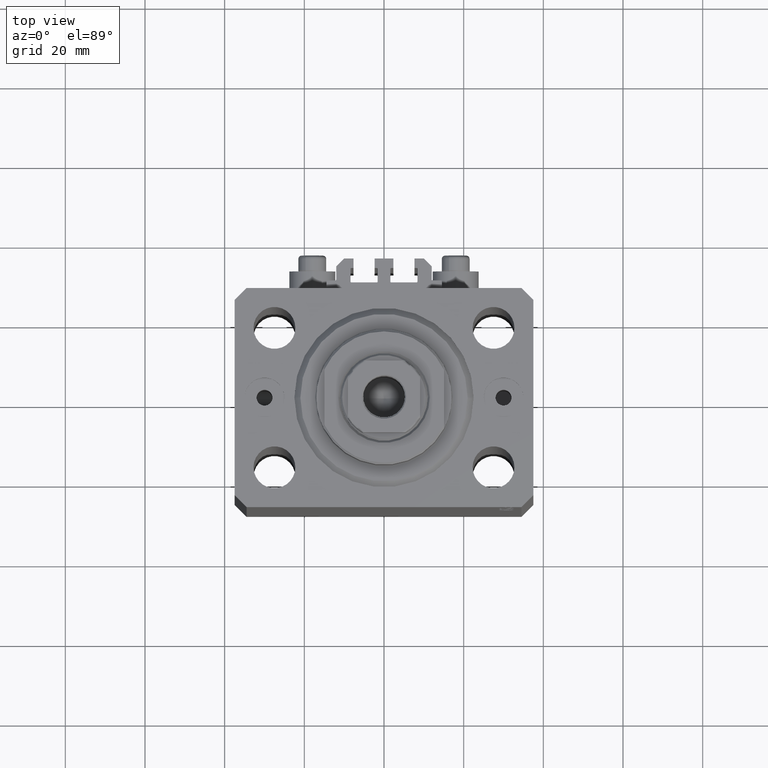
[diagram: clean part render]
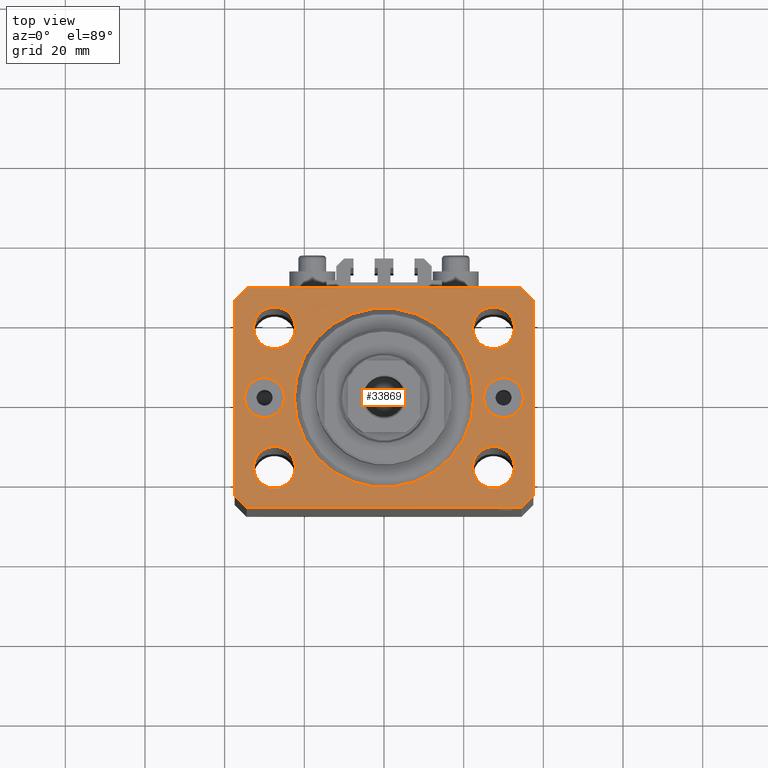
[diagram: same view with one face highlighted and labeled with its STEP entity id]
A machine part, top view. The second image highlights one B-rep face of the part: STEP entity #33869.
In plain terms, the highlighted planar face has unit normal (0, 0, 1).
Its self-contained STEP definition (entity closure, byte-faithful):
#52 = CIRCLE ( 'NONE', #45049, 4.999999999999997335 ) ;
#218 = CARTESIAN_POINT ( 'NONE',  ( -30.00000000000000000, 0.000000000000000000, 0.000000000000000000 ) ) ;
#371 = AXIS2_PLACEMENT_3D ( 'NONE', #46520, #13776, #32654 ) ;
#556 = ORIENTED_EDGE ( 'NONE', *, *, #935, .F. ) ;
#572 = AXIS2_PLACEMENT_3D ( 'NONE', #32322, #35432, #17275 ) ;
#717 = CARTESIAN_POINT ( 'NONE',  ( 32.74999999999999289, -17.50000000000000000, 0.000000000000000000 ) ) ;
#935 = EDGE_CURVE ( 'NONE', #5973, #20822, #38444, .T. ) ;
#1090 = CARTESIAN_POINT ( 'NONE',  ( -34.99999999999999289, 6.123233995736768255E-16, 0.000000000000000000 ) ) ;
#1126 = AXIS2_PLACEMENT_3D ( 'NONE', #42158, #17057, #2515 ) ;
#1346 = CARTESIAN_POINT ( 'NONE',  ( 34.50000000000056843, 27.50000000000000000, 0.000000000000000000 ) ) ;
#1486 = EDGE_CURVE ( 'NONE', #6903, #40974, #29649, .T. ) ;
#2423 = VECTOR ( 'NONE', #42468, 1000.000000000000000 ) ;
#2515 = DIRECTION ( 'NONE',  ( 1.000000000000000000, 0.000000000000000000, 0.000000000000000000 ) ) ;
#2725 = CARTESIAN_POINT ( 'NONE',  ( 37.50000000000051870, 24.49999999999995381, 0.000000000000000000 ) ) ;
#2911 = CARTESIAN_POINT ( 'NONE',  ( 34.50000000000056843, 27.50000000000000000, 0.000000000000000000 ) ) ;
#3159 = EDGE_LOOP ( 'NONE', ( #12148, #556 ) ) ;
#3284 = FACE_OUTER_BOUND ( 'NONE', #18243, .T. ) ;
#3455 = VERTEX_POINT ( 'NONE', #2725 ) ;
#3572 = AXIS2_PLACEMENT_3D ( 'NONE', #5764, #20320, #35373 ) ;
#3803 = VECTOR ( 'NONE', #15756, 1000.000000000000000 ) ;
#4118 = EDGE_CURVE ( 'NONE', #7936, #16037, #21667, .T. ) ;
#4270 = ORIENTED_EDGE ( 'NONE', *, *, #45210, .F. ) ;
#4705 = ORIENTED_EDGE ( 'NONE', *, *, #14314, .T. ) ;
#4963 = AXIS2_PLACEMENT_3D ( 'NONE', #20712, #6389, #16663 ) ;
#5320 = VERTEX_POINT ( 'NONE', #14351 ) ;
#5764 = CARTESIAN_POINT ( 'NONE',  ( 30.00000000000000000, 0.000000000000000000, 0.000000000000000000 ) ) ;
#5973 = VERTEX_POINT ( 'NONE', #1090 ) ;
#6184 = CARTESIAN_POINT ( 'NONE',  ( -27.49999999999999289, -17.50000000000000000, 0.000000000000000000 ) ) ;
#6291 = VERTEX_POINT ( 'NONE', #37333 ) ;
#6389 = DIRECTION ( 'NONE',  ( 0.000000000000000000, 0.000000000000000000, 1.000000000000000000 ) ) ;
#6903 = VERTEX_POINT ( 'NONE', #18004 ) ;
#7145 = DIRECTION ( 'NONE',  ( 0.000000000000000000, 0.000000000000000000, 1.000000000000000000 ) ) ;
#7861 = CARTESIAN_POINT ( 'NONE',  ( 27.49999999999999289, -17.50000000000000000, 0.000000000000000000 ) ) ;
#7936 = VERTEX_POINT ( 'NONE', #717 ) ;
#7975 = VERTEX_POINT ( 'NONE', #34591 ) ;
#8248 = EDGE_LOOP ( 'NONE', ( #4270, #17418 ) ) ;
#8287 = CARTESIAN_POINT ( 'NONE',  ( 27.50000000000000000, 17.49999999999999289, 0.000000000000000000 ) ) ;
#9038 = ORIENTED_EDGE ( 'NONE', *, *, #46340, .F. ) ;
#9282 = CARTESIAN_POINT ( 'NONE',  ( 22.25000000000000000, 17.49999999999999289, 0.000000000000000000 ) ) ;
#9784 = EDGE_CURVE ( 'NONE', #7975, #6903, #15517, .T. ) ;
#10271 = VERTEX_POINT ( 'NONE', #41918 ) ;
#10442 = FACE_BOUND ( 'NONE', #17953, .T. ) ;
#11856 = EDGE_LOOP ( 'NONE', ( #20632, #13650 ) ) ;
#12148 = ORIENTED_EDGE ( 'NONE', *, *, #44694, .F. ) ;
#12894 = EDGE_CURVE ( 'NONE', #20275, #25080, #35647, .T. ) ;
#13241 = CARTESIAN_POINT ( 'NONE',  ( -27.50000000000000000, 17.49999999999999645, 0.000000000000000000 ) ) ;
#13602 = DIRECTION ( 'NONE',  ( 1.000000000000000000, 0.000000000000000000, 0.000000000000000000 ) ) ;
#13650 = ORIENTED_EDGE ( 'NONE', *, *, #24804, .F. ) ;
#13776 = DIRECTION ( 'NONE',  ( 0.000000000000000000, 0.000000000000000000, 1.000000000000000000 ) ) ;
#13953 = VERTEX_POINT ( 'NONE', #29214 ) ;
#13992 = DIRECTION ( 'NONE',  ( 0.000000000000000000, 0.000000000000000000, 1.000000000000000000 ) ) ;
#14314 = EDGE_CURVE ( 'NONE', #24324, #23180, #21040, .T. ) ;
#14351 = CARTESIAN_POINT ( 'NONE',  ( 22.50000000000000355, 0.000000000000000000, 0.000000000000000000 ) ) ;
#15108 = VECTOR ( 'NONE', #43027, 1000.000000000000000 ) ;
#15516 = CARTESIAN_POINT ( 'NONE',  ( 0.000000000000000000, 0.000000000000000000, 0.000000000000000000 ) ) ;
#15517 = LINE ( 'NONE', #15987, #3803 ) ;
#15756 = DIRECTION ( 'NONE',  ( 0.7071067811865483499, -0.7071067811865466846, 0.000000000000000000 ) ) ;
#15798 = CIRCLE ( 'NONE', #23431, 5.250000000000000888 ) ;
#15987 = CARTESIAN_POINT ( 'NONE',  ( -37.49999999999999289, -24.50000000000000000, 0.000000000000000000 ) ) ;
#16037 = VERTEX_POINT ( 'NONE', #38860 ) ;
#16557 = DIRECTION ( 'NONE',  ( 1.000000000000000000, 0.000000000000000000, 0.000000000000000000 ) ) ;
#16663 = DIRECTION ( 'NONE',  ( 1.000000000000000000, 0.000000000000000000, 0.000000000000000000 ) ) ;
#16918 = DIRECTION ( 'NONE',  ( 1.000000000000000000, 0.000000000000000000, 0.000000000000000000 ) ) ;
#16931 = EDGE_LOOP ( 'NONE', ( #31565, #29992 ) ) ;
#17021 = LINE ( 'NONE', #25149, #36438 ) ;
#17057 = DIRECTION ( 'NONE',  ( 0.000000000000000000, 0.000000000000000000, 1.000000000000000000 ) ) ;
#17275 = DIRECTION ( 'NONE',  ( 1.000000000000000000, 0.000000000000000000, 0.000000000000000000 ) ) ;
#17418 = ORIENTED_EDGE ( 'NONE', *, *, #39379, .F. ) ;
#17640 = DIRECTION ( 'NONE',  ( 0.000000000000000000, 0.000000000000000000, 1.000000000000000000 ) ) ;
#17742 = DIRECTION ( 'NONE',  ( -0.7071067811865364705, 0.7071067811865584529, 0.000000000000000000 ) ) ;
#17839 = PLANE ( 'NONE',  #371 ) ;
#17853 = EDGE_CURVE ( 'NONE', #40974, #44222, #29716, .T. ) ;
#17927 = CARTESIAN_POINT ( 'NONE',  ( 0.000000000000000000, 0.000000000000000000, 0.000000000000000000 ) ) ;
#17953 = EDGE_LOOP ( 'NONE', ( #43689, #21880 ) ) ;
#18004 = CARTESIAN_POINT ( 'NONE',  ( -34.49999999999998579, -27.49999999999999645, 0.000000000000000000 ) ) ;
#18077 = FACE_BOUND ( 'NONE', #16931, .T. ) ;
#18243 = EDGE_LOOP ( 'NONE', ( #4705, #43824, #25935, #20475, #19341, #44715, #32726, #42451 ) ) ;
#18292 = EDGE_CURVE ( 'NONE', #44988, #35584, #52, .T. ) ;
#18643 = DIRECTION ( 'NONE',  ( 1.000000000000000000, 0.000000000000000000, 0.000000000000000000 ) ) ;
#18721 = DIRECTION ( 'NONE',  ( 0.7071067811865474617, 0.7071067811865474617, 0.000000000000000000 ) ) ;
#19018 = DIRECTION ( 'NONE',  ( 1.000000000000000000, 0.000000000000000000, 0.000000000000000000 ) ) ;
#19341 = ORIENTED_EDGE ( 'NONE', *, *, #1486, .T. ) ;
#19513 = CARTESIAN_POINT ( 'NONE',  ( 37.49999999999999289, -24.50000000000000000, 0.000000000000000000 ) ) ;
#19687 = EDGE_LOOP ( 'NONE', ( #33014, #20514 ) ) ;
#20138 = DIRECTION ( 'NONE',  ( 0.000000000000000000, 0.000000000000000000, 1.000000000000000000 ) ) ;
#20275 = VERTEX_POINT ( 'NONE', #9282 ) ;
#20320 = DIRECTION ( 'NONE',  ( 0.000000000000000000, -0.000000000000000000, -1.000000000000000000 ) ) ;
#20412 = DIRECTION ( 'NONE',  ( 0.000000000000000000, 0.000000000000000000, 1.000000000000000000 ) ) ;
#20475 = ORIENTED_EDGE ( 'NONE', *, *, #9784, .T. ) ;
#20514 = ORIENTED_EDGE ( 'NONE', *, *, #34040, .F. ) ;
#20632 = ORIENTED_EDGE ( 'NONE', *, *, #4118, .F. ) ;
#20712 = CARTESIAN_POINT ( 'NONE',  ( -27.49999999999999289, -17.50000000000000000, 0.000000000000000000 ) ) ;
#20822 = VERTEX_POINT ( 'NONE', #29262 ) ;
#21040 = LINE ( 'NONE', #2911, #15108 ) ;
#21086 = DIRECTION ( 'NONE',  ( -0.7071067811865471286, -0.7071067811865479058, 0.000000000000000000 ) ) ;
#21418 = FACE_BOUND ( 'NONE', #3159, .T. ) ;
#21667 = CIRCLE ( 'NONE', #43921, 5.250000000000000888 ) ;
#21880 = ORIENTED_EDGE ( 'NONE', *, *, #12894, .F. ) ;
#22120 = EDGE_CURVE ( 'NONE', #44222, #3455, #23330, .T. ) ;
#22206 = DIRECTION ( 'NONE',  ( 0.000000000000000000, 0.000000000000000000, 1.000000000000000000 ) ) ;
#22892 = VECTOR ( 'NONE', #34095, 1000.000000000000000 ) ;
#23180 = VERTEX_POINT ( 'NONE', #45036 ) ;
#23243 = CARTESIAN_POINT ( 'NONE',  ( 34.49999999999999289, -27.49999999999999645, 0.000000000000000000 ) ) ;
#23259 = CIRCLE ( 'NONE', #4963, 5.250000000000000888 ) ;
#23330 = LINE ( 'NONE', #19513, #22892 ) ;
#23431 = AXIS2_PLACEMENT_3D ( 'NONE', #6184, #17640, #16918 ) ;
#23761 = DIRECTION ( 'NONE',  ( 1.000000000000000000, 0.000000000000000000, 0.000000000000000000 ) ) ;
#24101 = CARTESIAN_POINT ( 'NONE',  ( -22.50000000000000355, 2.755455298081544383E-15, 0.000000000000000000 ) ) ;
#24324 = VERTEX_POINT ( 'NONE', #1346 ) ;
#24427 = LINE ( 'NONE', #39724, #46744 ) ;
#24748 = EDGE_LOOP ( 'NONE', ( #9038, #25482 ) ) ;
#24804 = EDGE_CURVE ( 'NONE', #16037, #7936, #35937, .T. ) ;
#24896 = CIRCLE ( 'NONE', #3572, 4.999999999999997335 ) ;
#25001 = FACE_BOUND ( 'NONE', #11856, .T. ) ;
#25080 = VERTEX_POINT ( 'NONE', #29299 ) ;
#25149 = CARTESIAN_POINT ( 'NONE',  ( 37.50000000000051870, 24.49999999999995381, 0.000000000000000000 ) ) ;
#25482 = ORIENTED_EDGE ( 'NONE', *, *, #39919, .F. ) ;
#25910 = EDGE_CURVE ( 'NONE', #38915, #7975, #27889, .T. ) ;
#25935 = ORIENTED_EDGE ( 'NONE', *, *, #25910, .T. ) ;
#26273 = CIRCLE ( 'NONE', #40013, 5.250000000000000888 ) ;
#27889 = LINE ( 'NONE', #46531, #2423 ) ;
#28178 = CARTESIAN_POINT ( 'NONE',  ( 30.00000000000000000, 0.000000000000000000, 0.000000000000000000 ) ) ;
#28959 = CARTESIAN_POINT ( 'NONE',  ( 34.99999999999999289, 0.000000000000000000, 0.000000000000000000 ) ) ;
#29214 = CARTESIAN_POINT ( 'NONE',  ( -32.75000000000000000, 17.49999999999999645, 0.000000000000000000 ) ) ;
#29262 = CARTESIAN_POINT ( 'NONE',  ( -24.99999999999999645, 0.000000000000000000, 0.000000000000000000 ) ) ;
#29297 = FACE_BOUND ( 'NONE', #8248, .T. ) ;
#29299 = CARTESIAN_POINT ( 'NONE',  ( 32.75000000000000000, 17.49999999999999289, 0.000000000000000000 ) ) ;
#29347 = DIRECTION ( 'NONE',  ( 1.000000000000000000, 0.000000000000000000, 0.000000000000000000 ) ) ;
#29649 = LINE ( 'NONE', #47104, #39229 ) ;
#29716 = LINE ( 'NONE', #23243, #37316 ) ;
#29744 = EDGE_CURVE ( 'NONE', #23180, #38915, #24427, .T. ) ;
#29992 = ORIENTED_EDGE ( 'NONE', *, *, #18292, .T. ) ;
#30810 = AXIS2_PLACEMENT_3D ( 'NONE', #218, #7145, #29347 ) ;
#31044 = CIRCLE ( 'NONE', #572, 5.000000000000000888 ) ;
#31565 = ORIENTED_EDGE ( 'NONE', *, *, #43816, .T. ) ;
#31707 = VERTEX_POINT ( 'NONE', #24101 ) ;
#31765 = DIRECTION ( 'NONE',  ( 0.000000000000000000, -0.000000000000000000, -1.000000000000000000 ) ) ;
#31856 = AXIS2_PLACEMENT_3D ( 'NONE', #15516, #44912, #41318 ) ;
#32112 = AXIS2_PLACEMENT_3D ( 'NONE', #7861, #37003, #39104 ) ;
#32178 = FACE_BOUND ( 'NONE', #19687, .T. ) ;
#32322 = CARTESIAN_POINT ( 'NONE',  ( -30.00000000000000000, 0.000000000000000000, 0.000000000000000000 ) ) ;
#32654 = DIRECTION ( 'NONE',  ( 1.000000000000000000, 0.000000000000000000, -0.000000000000000000 ) ) ;
#32726 = ORIENTED_EDGE ( 'NONE', *, *, #22120, .T. ) ;
#32862 = DIRECTION ( 'NONE',  ( 1.000000000000000000, 0.000000000000000000, 0.000000000000000000 ) ) ;
#33014 = ORIENTED_EDGE ( 'NONE', *, *, #34056, .F. ) ;
#33202 = DIRECTION ( 'NONE',  ( 1.000000000000000000, 0.000000000000000000, 0.000000000000000000 ) ) ;
#33844 = CARTESIAN_POINT ( 'NONE',  ( 37.49999999999999289, -24.50000000000000000, 0.000000000000000000 ) ) ;
#33869 = ADVANCED_FACE ( 'NONE', ( #3284, #32178, #10442, #25001, #29297, #40285, #21418, #18077 ), #17839, .T. ) ;
#33919 = CIRCLE ( 'NONE', #1126, 5.250000000000000888 ) ;
#34040 = EDGE_CURVE ( 'NONE', #13953, #6291, #33919, .T. ) ;
#34056 = EDGE_CURVE ( 'NONE', #6291, #13953, #26273, .T. ) ;
#34095 = DIRECTION ( 'NONE',  ( 1.076236605503979380E-14, 1.000000000000000000, 0.000000000000000000 ) ) ;
#34261 = CARTESIAN_POINT ( 'NONE',  ( 27.50000000000000000, 17.49999999999999289, 0.000000000000000000 ) ) ;
#34591 = CARTESIAN_POINT ( 'NONE',  ( -37.49999999999999289, -24.50000000000000000, 0.000000000000000000 ) ) ;
#35373 = DIRECTION ( 'NONE',  ( 1.000000000000000000, 0.000000000000000000, 0.000000000000000000 ) ) ;
#35432 = DIRECTION ( 'NONE',  ( 0.000000000000000000, 0.000000000000000000, 1.000000000000000000 ) ) ;
#35584 = VERTEX_POINT ( 'NONE', #28959 ) ;
#35647 = CIRCLE ( 'NONE', #38708, 5.250000000000000888 ) ;
#35937 = CIRCLE ( 'NONE', #32112, 5.250000000000000888 ) ;
#36438 = VECTOR ( 'NONE', #17742, 1000.000000000000114 ) ;
#37003 = DIRECTION ( 'NONE',  ( 0.000000000000000000, 0.000000000000000000, 1.000000000000000000 ) ) ;
#37017 = AXIS2_PLACEMENT_3D ( 'NONE', #17927, #22206, #33202 ) ;
#37316 = VECTOR ( 'NONE', #18721, 1000.000000000000114 ) ;
#37333 = CARTESIAN_POINT ( 'NONE',  ( -22.25000000000000000, 17.49999999999999645, 0.000000000000000000 ) ) ;
#37886 = DIRECTION ( 'NONE',  ( 0.000000000000000000, 0.000000000000000000, 1.000000000000000000 ) ) ;
#38444 = CIRCLE ( 'NONE', #30810, 5.000000000000000888 ) ;
#38708 = AXIS2_PLACEMENT_3D ( 'NONE', #34261, #20138, #16557 ) ;
#38860 = CARTESIAN_POINT ( 'NONE',  ( 22.24999999999999289, -17.50000000000000000, 0.000000000000000000 ) ) ;
#38915 = VERTEX_POINT ( 'NONE', #41119 ) ;
#39104 = DIRECTION ( 'NONE',  ( 1.000000000000000000, 0.000000000000000000, 0.000000000000000000 ) ) ;
#39229 = VECTOR ( 'NONE', #18643, 1000.000000000000000 ) ;
#39255 = CIRCLE ( 'NONE', #43873, 5.250000000000000888 ) ;
#39379 = EDGE_CURVE ( 'NONE', #10271, #44182, #23259, .T. ) ;
#39444 = EDGE_CURVE ( 'NONE', #25080, #20275, #39255, .T. ) ;
#39724 = CARTESIAN_POINT ( 'NONE',  ( -34.49999999999999289, 27.50000000000000000, 0.000000000000000000 ) ) ;
#39793 = CARTESIAN_POINT ( 'NONE',  ( 27.49999999999999289, -17.50000000000000000, 0.000000000000000000 ) ) ;
#39919 = EDGE_CURVE ( 'NONE', #31707, #5320, #40833, .T. ) ;
#40013 = AXIS2_PLACEMENT_3D ( 'NONE', #13241, #20412, #23761 ) ;
#40285 = FACE_BOUND ( 'NONE', #24748, .T. ) ;
#40833 = CIRCLE ( 'NONE', #37017, 22.50000000000000355 ) ;
#40974 = VERTEX_POINT ( 'NONE', #43917 ) ;
#41000 = CIRCLE ( 'NONE', #31856, 22.50000000000000355 ) ;
#41119 = CARTESIAN_POINT ( 'NONE',  ( -37.49999999999999289, 24.50000000000000000, 0.000000000000000000 ) ) ;
#41318 = DIRECTION ( 'NONE',  ( 1.000000000000000000, 0.000000000000000000, 0.000000000000000000 ) ) ;
#41918 = CARTESIAN_POINT ( 'NONE',  ( -32.74999999999999289, -17.50000000000000000, 0.000000000000000000 ) ) ;
#42158 = CARTESIAN_POINT ( 'NONE',  ( -27.50000000000000000, 17.49999999999999645, 0.000000000000000000 ) ) ;
#42451 = ORIENTED_EDGE ( 'NONE', *, *, #45850, .T. ) ;
#42468 = DIRECTION ( 'NONE',  ( 0.000000000000000000, -1.000000000000000000, 0.000000000000000000 ) ) ;
#43027 = DIRECTION ( 'NONE',  ( -1.000000000000000000, 0.000000000000000000, 0.000000000000000000 ) ) ;
#43262 = CARTESIAN_POINT ( 'NONE',  ( 25.00000000000000000, 6.123233995736762338E-16, 0.000000000000000000 ) ) ;
#43689 = ORIENTED_EDGE ( 'NONE', *, *, #39444, .F. ) ;
#43816 = EDGE_CURVE ( 'NONE', #35584, #44988, #24896, .T. ) ;
#43824 = ORIENTED_EDGE ( 'NONE', *, *, #29744, .T. ) ;
#43873 = AXIS2_PLACEMENT_3D ( 'NONE', #8287, #37886, #19018 ) ;
#43917 = CARTESIAN_POINT ( 'NONE',  ( 34.49999999999999289, -27.49999999999999645, 0.000000000000000000 ) ) ;
#43921 = AXIS2_PLACEMENT_3D ( 'NONE', #39793, #13992, #32862 ) ;
#44182 = VERTEX_POINT ( 'NONE', #44846 ) ;
#44222 = VERTEX_POINT ( 'NONE', #33844 ) ;
#44694 = EDGE_CURVE ( 'NONE', #20822, #5973, #31044, .T. ) ;
#44715 = ORIENTED_EDGE ( 'NONE', *, *, #17853, .T. ) ;
#44846 = CARTESIAN_POINT ( 'NONE',  ( -22.24999999999999289, -17.50000000000000000, 0.000000000000000000 ) ) ;
#44912 = DIRECTION ( 'NONE',  ( 0.000000000000000000, 0.000000000000000000, 1.000000000000000000 ) ) ;
#44988 = VERTEX_POINT ( 'NONE', #43262 ) ;
#45036 = CARTESIAN_POINT ( 'NONE',  ( -34.49999999999999289, 27.50000000000000000, 0.000000000000000000 ) ) ;
#45049 = AXIS2_PLACEMENT_3D ( 'NONE', #28178, #31765, #13602 ) ;
#45210 = EDGE_CURVE ( 'NONE', #44182, #10271, #15798, .T. ) ;
#45850 = EDGE_CURVE ( 'NONE', #3455, #24324, #17021, .T. ) ;
#46340 = EDGE_CURVE ( 'NONE', #5320, #31707, #41000, .T. ) ;
#46520 = CARTESIAN_POINT ( 'NONE',  ( 0.000000000000000000, 0.000000000000000000, 0.000000000000000000 ) ) ;
#46531 = CARTESIAN_POINT ( 'NONE',  ( -37.49999999999999289, 24.50000000000000000, 0.000000000000000000 ) ) ;
#46744 = VECTOR ( 'NONE', #21086, 1000.000000000000000 ) ;
#47104 = CARTESIAN_POINT ( 'NONE',  ( -34.49999999999998579, -27.49999999999999645, 0.000000000000000000 ) ) ;